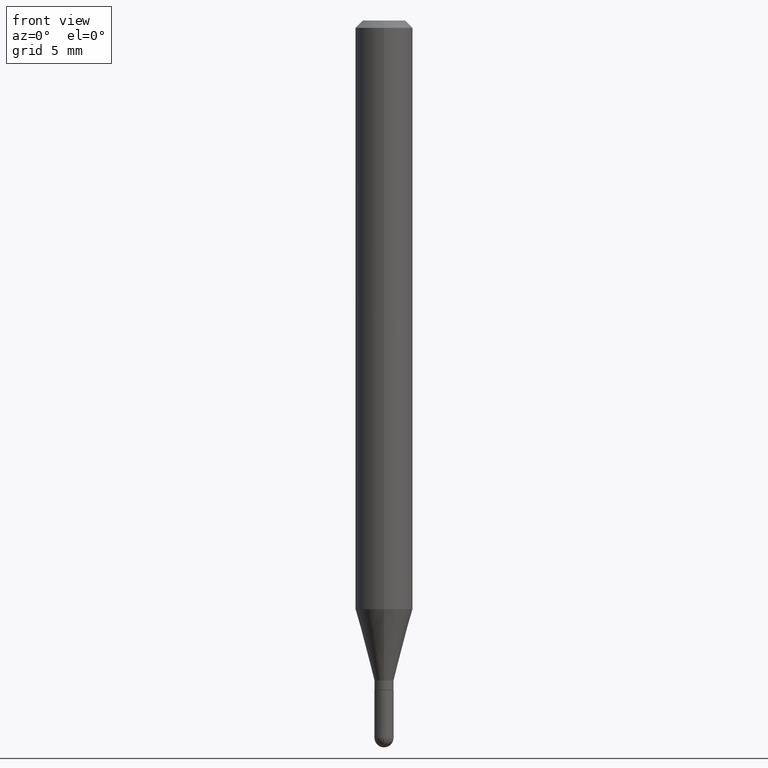
[diagram: clean part render]
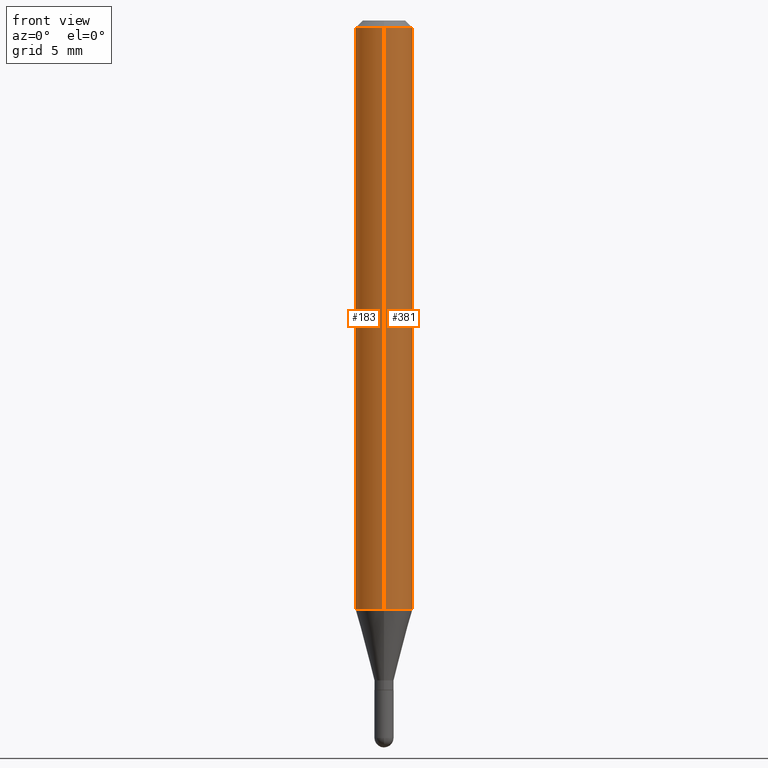
[diagram: same view with one multi-face feature highlighted, each face labeled with its STEP entity id]
A machine part, front view. The highlighted faces form ONE feature: a constant-radius fillet chain: 2 tangent blend faces with common blend radius 1.4999 mm. The faces share edges in the B-rep.
Their STEP definitions:
[1] entity #183 (Cylinder):
#3 = LINE ( 'NONE', #128, #344 ) ;
#10 = DIRECTION ( 'NONE',  ( -2.446456800980005682E-29, 3.490066474063722068E-15, 1.000000000000000000 ) ) ;
#11 = DIRECTION ( 'NONE',  ( -6.982962677686265922E-15, -1.000000000000000000, 3.490066474063722068E-15 ) ) ;
#13 = CARTESIAN_POINT ( 'NONE',  ( 4.195754854663688780E-16, 0.05904999999999994975, -0.01500000000000055109 ) ) ;
#16 = CARTESIAN_POINT ( 'NONE',  ( -4.123439461173739834E-16, -0.05904999999999999832, 2.060884252934627892E-16 ) ) ;
#74 = EDGE_LOOP ( 'NONE', ( #106, #357, #229, #321 ) ) ;
#89 = AXIS2_PLACEMENT_3D ( 'NONE', #428, #312, #117 ) ;
#90 = DIRECTION ( 'NONE',  ( -2.446456800980005402E-29, 3.490066474063722068E-15, 1.000000000000000000 ) ) ;
#101 = CARTESIAN_POINT ( 'NONE',  ( 4.195754854663685822E-16, 0.05904999999999575866, -1.211243800722164643 ) ) ;
#106 = ORIENTED_EDGE ( 'NONE', *, *, #265, .F. ) ;
#111 = CIRCLE ( 'NONE', #89, 0.05904999999999999832 ) ;
#117 = DIRECTION ( 'NONE',  ( -6.982962677686265922E-15, -1.000000000000000000, 4.626330217890369336E-15 ) ) ;
#124 = EDGE_CURVE ( 'NONE', #442, #182, #111, .T. ) ;
#125 = CIRCLE ( 'NONE', #371, 0.05904999999999999832 ) ;
#128 = CARTESIAN_POINT ( 'NONE',  ( 4.195754854663390985E-16, 0.05904999999999999832, -2.060884252934627892E-16 ) ) ;
#182 = VERTEX_POINT ( 'NONE', #434 ) ;
#183 = ADVANCED_FACE ( 'NONE', ( #420 ), #367, .T. ) ;
#229 = ORIENTED_EDGE ( 'NONE', *, *, #378, .T. ) ;
#243 = DIRECTION ( 'NONE',  ( -2.446456800980005402E-29, 3.490066474063722068E-15, 1.000000000000000000 ) ) ;
#245 = DIRECTION ( 'NONE',  ( -6.982962677686265922E-15, -1.000000000000000000, 3.505890868245046092E-15 ) ) ;
#265 = EDGE_CURVE ( 'NONE', #442, #277, #3, .T. ) ;
#277 = VERTEX_POINT ( 'NONE', #13 ) ;
#296 = EDGE_CURVE ( 'NONE', #277, #408, #125, .T. ) ;
#312 = DIRECTION ( 'NONE',  ( -2.446456800980005402E-29, 3.490066474063722068E-15, 1.000000000000000000 ) ) ;
#320 = AXIS2_PLACEMENT_3D ( 'NONE', #485, #90, #11 ) ;
#321 = ORIENTED_EDGE ( 'NONE', *, *, #296, .F. ) ;
#338 = CARTESIAN_POINT ( 'NONE',  ( -4.123439461173736383E-16, -0.05905000000000005383, -0.01500000000000013649 ) ) ;
#344 = VECTOR ( 'NONE', #10, 39.37007874015748143 ) ;
#357 = ORIENTED_EDGE ( 'NONE', *, *, #124, .T. ) ;
#367 = CYLINDRICAL_SURFACE ( 'NONE', #320, 0.05904999999999999832 ) ;
#371 = AXIS2_PLACEMENT_3D ( 'NONE', #405, #243, #245 ) ;
#378 = EDGE_CURVE ( 'NONE', #182, #408, #462, .T. ) ;
#405 = CARTESIAN_POINT ( 'NONE',  ( 3.669685201470092461E-31, -5.235099711095702540E-17, -0.01500000000000034292 ) ) ;
#408 = VERTEX_POINT ( 'NONE', #338 ) ;
#414 = DIRECTION ( 'NONE',  ( -2.446456800980005682E-29, 3.490066474063722068E-15, 1.000000000000000000 ) ) ;
#420 = FACE_OUTER_BOUND ( 'NONE', #74, .T. ) ;
#428 = CARTESIAN_POINT ( 'NONE',  ( 2.963255633921609456E-29, -4.227321380817945395E-15, -1.211243800722164421 ) ) ;
#434 = CARTESIAN_POINT ( 'NONE',  ( -4.123439461173444997E-16, -0.05905000000000424493, -1.211243800722164199 ) ) ;
#442 = VERTEX_POINT ( 'NONE', #101 ) ;
#462 = LINE ( 'NONE', #16, #505 ) ;
#485 = CARTESIAN_POINT ( 'NONE',  ( 0.000000000000000000, 0.000000000000000000, 0.000000000000000000 ) ) ;
#505 = VECTOR ( 'NONE', #414, 39.37007874015748143 ) ;
[2] entity #381 (Cylinder):
#3 = LINE ( 'NONE', #128, #344 ) ;
#10 = DIRECTION ( 'NONE',  ( -2.446456800980005682E-29, 3.490066474063722068E-15, 1.000000000000000000 ) ) ;
#13 = CARTESIAN_POINT ( 'NONE',  ( 4.195754854663688780E-16, 0.05904999999999994975, -0.01500000000000055109 ) ) ;
#16 = CARTESIAN_POINT ( 'NONE',  ( -4.123439461173739834E-16, -0.05904999999999999832, 2.060884252934627892E-16 ) ) ;
#40 = EDGE_CURVE ( 'NONE', #408, #277, #60, .T. ) ;
#60 = CIRCLE ( 'NONE', #478, 0.05904999999999999832 ) ;
#62 = DIRECTION ( 'NONE',  ( -2.446456800980005402E-29, 3.490066474063722068E-15, 1.000000000000000000 ) ) ;
#101 = CARTESIAN_POINT ( 'NONE',  ( 4.195754854663685822E-16, 0.05904999999999575866, -1.211243800722164643 ) ) ;
#112 = CIRCLE ( 'NONE', #137, 0.05904999999999999832 ) ;
#119 = CARTESIAN_POINT ( 'NONE',  ( 3.669685201470092461E-31, -5.235099711095702540E-17, -0.01500000000000034292 ) ) ;
#128 = CARTESIAN_POINT ( 'NONE',  ( 4.195754854663390985E-16, 0.05904999999999999832, -2.060884252934627892E-16 ) ) ;
#132 = ORIENTED_EDGE ( 'NONE', *, *, #378, .F. ) ;
#137 = AXIS2_PLACEMENT_3D ( 'NONE', #247, #252, #254 ) ;
#139 = CARTESIAN_POINT ( 'NONE',  ( 0.000000000000000000, 0.000000000000000000, 0.000000000000000000 ) ) ;
#147 = ORIENTED_EDGE ( 'NONE', *, *, #40, .F. ) ;
#182 = VERTEX_POINT ( 'NONE', #434 ) ;
#210 = CYLINDRICAL_SURFACE ( 'NONE', #461, 0.05904999999999999832 ) ;
#226 = DIRECTION ( 'NONE',  ( -2.446456800980005402E-29, 3.490066474063722068E-15, 1.000000000000000000 ) ) ;
#247 = CARTESIAN_POINT ( 'NONE',  ( 2.963255633921609456E-29, -4.227321380817945395E-15, -1.211243800722164421 ) ) ;
#252 = DIRECTION ( 'NONE',  ( -2.446456800980005402E-29, 3.490066474063722068E-15, 1.000000000000000000 ) ) ;
#254 = DIRECTION ( 'NONE',  ( -6.982962677686265922E-15, -1.000000000000000000, 4.626330217890369336E-15 ) ) ;
#265 = EDGE_CURVE ( 'NONE', #442, #277, #3, .T. ) ;
#269 = ORIENTED_EDGE ( 'NONE', *, *, #265, .T. ) ;
#277 = VERTEX_POINT ( 'NONE', #13 ) ;
#326 = EDGE_LOOP ( 'NONE', ( #364, #269, #147, #132 ) ) ;
#338 = CARTESIAN_POINT ( 'NONE',  ( -4.123439461173736383E-16, -0.05905000000000005383, -0.01500000000000013649 ) ) ;
#344 = VECTOR ( 'NONE', #10, 39.37007874015748143 ) ;
#364 = ORIENTED_EDGE ( 'NONE', *, *, #467, .T. ) ;
#374 = DIRECTION ( 'NONE',  ( -6.982962677686265922E-15, -1.000000000000000000, 3.490066474063722068E-15 ) ) ;
#378 = EDGE_CURVE ( 'NONE', #182, #408, #462, .T. ) ;
#380 = FACE_OUTER_BOUND ( 'NONE', #326, .T. ) ;
#381 = ADVANCED_FACE ( 'NONE', ( #380 ), #210, .T. ) ;
#408 = VERTEX_POINT ( 'NONE', #338 ) ;
#414 = DIRECTION ( 'NONE',  ( -2.446456800980005682E-29, 3.490066474063722068E-15, 1.000000000000000000 ) ) ;
#434 = CARTESIAN_POINT ( 'NONE',  ( -4.123439461173444997E-16, -0.05905000000000424493, -1.211243800722164199 ) ) ;
#442 = VERTEX_POINT ( 'NONE', #101 ) ;
#461 = AXIS2_PLACEMENT_3D ( 'NONE', #139, #62, #374 ) ;
#462 = LINE ( 'NONE', #16, #505 ) ;
#467 = EDGE_CURVE ( 'NONE', #182, #442, #112, .T. ) ;
#478 = AXIS2_PLACEMENT_3D ( 'NONE', #119, #226, #499 ) ;
#499 = DIRECTION ( 'NONE',  ( -6.982962677686265922E-15, -1.000000000000000000, 3.505890868245046092E-15 ) ) ;
#505 = VECTOR ( 'NONE', #414, 39.37007874015748143 ) ;